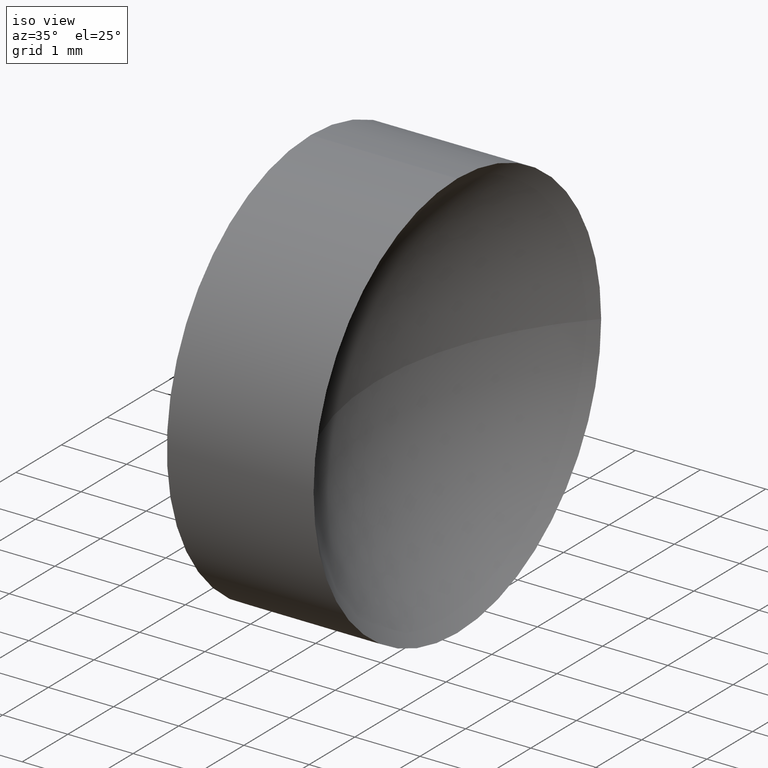
[diagram: clean part render]
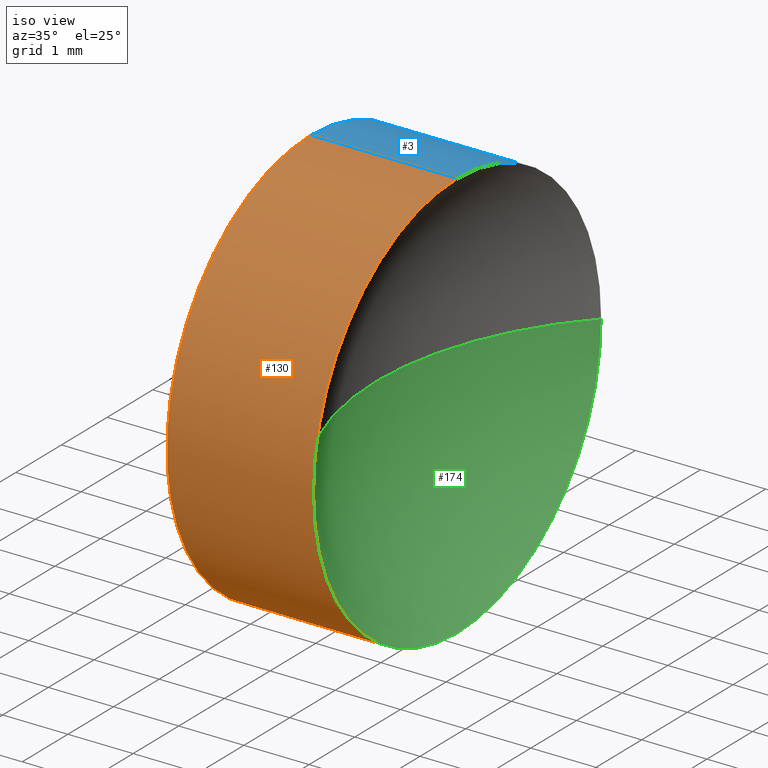
[diagram: same view with three faces highlighted in distinct colors, each labeled with its STEP entity id]
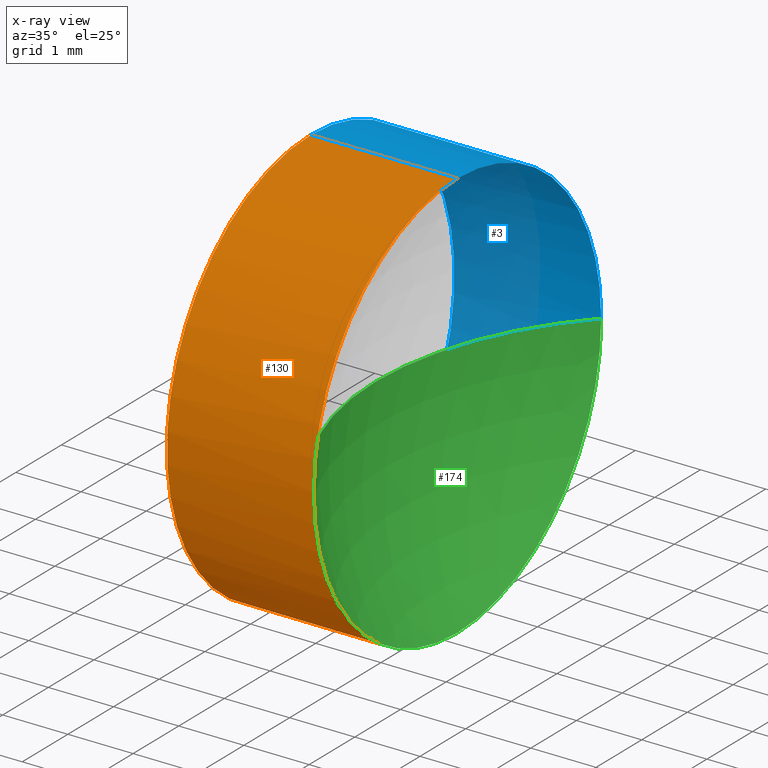
[diagram: x-ray of the same camera — body ghosted, the three highlighted faces saturated]
A machine part, iso view with three faces highlighted in distinct colors.
The next image is the same camera in x-ray (body ghosted, the three faces saturated) — at least one of them is partly hidden behind the body in this view.
Their STEP definitions:

[orange] entity #130 — the highlighted cylindrical surface (partial cylindrical patch) has radius 3.15 mm, axis along (-1, -0, -0).
#5 = FACE_OUTER_BOUND ( 'NONE', #109, .T. ) ;
#11 = DIRECTION ( 'NONE',  ( 0.0000000000000000000, 0.0000000000000000000, 1.000000000000000000 ) ) ;
#19 = LINE ( 'NONE', #47, #172 ) ;
#21 = DIRECTION ( 'NONE',  ( 0.0000000000000000000, 0.0000000000000000000, 1.000000000000000000 ) ) ;
#23 = CARTESIAN_POINT ( 'NONE',  ( 21.15647192244426100, 13.03112609140304000, 3.149999999999998100 ) ) ;
#26 = VERTEX_POINT ( 'NONE', #183 ) ;
#29 = ORIENTED_EDGE ( 'NONE', *, *, #134, .T. ) ;
#35 = CARTESIAN_POINT ( 'NONE',  ( 24.45087548928661300, 13.03112609140304000, -3.149999999999998100 ) ) ;
#36 = DIRECTION ( 'NONE',  ( -1.000000000000000000, -0.0000000000000000000, -0.0000000000000000000 ) ) ;
#37 = CARTESIAN_POINT ( 'NONE',  ( 24.45087548928661300, 13.03112609140304000, 0.0000000000000000000 ) ) ;
#38 = DIRECTION ( 'NONE',  ( -1.000000000000000000, -0.0000000000000000000, -0.0000000000000000000 ) ) ;
#47 = CARTESIAN_POINT ( 'NONE',  ( 21.15647192244426100, 13.03112609140304000, -3.149999999999998100 ) ) ;
#57 = ORIENTED_EDGE ( 'NONE', *, *, #60, .F. ) ;
#60 = EDGE_CURVE ( 'NONE', #131, #91, #65, .T. ) ;
#61 = CIRCLE ( 'NONE', #135, 3.149999999999998100 ) ;
#63 = AXIS2_PLACEMENT_3D ( 'NONE', #113, #36, #143 ) ;
#65 = CIRCLE ( 'NONE', #98, 3.149999999999998100 ) ;
#66 = CARTESIAN_POINT ( 'NONE',  ( 22.20087548928661300, 13.03112609140304000, 0.0000000000000000000 ) ) ;
#69 = CARTESIAN_POINT ( 'NONE',  ( 22.20087548928661300, 13.03112609140304000, 3.149999999999998100 ) ) ;
#71 = EDGE_CURVE ( 'NONE', #164, #131, #19, .T. ) ;
#79 = VERTEX_POINT ( 'NONE', #138 ) ;
#86 = CIRCLE ( 'NONE', #63, 3.149999999999998100 ) ;
#91 = VERTEX_POINT ( 'NONE', #69 ) ;
#93 = VECTOR ( 'NONE', #142, 1000.000000000000000 ) ;
#95 = CARTESIAN_POINT ( 'NONE',  ( 22.20087548928661300, 13.03112609140304000, -3.149999999999998100 ) ) ;
#98 = AXIS2_PLACEMENT_3D ( 'NONE', #66, #122, #11 ) ;
#99 = DIRECTION ( 'NONE',  ( 0.0000000000000000000, 0.0000000000000000000, 1.000000000000000000 ) ) ;
#102 = ORIENTED_EDGE ( 'NONE', *, *, #161, .T. ) ;
#109 = EDGE_LOOP ( 'NONE', ( #160, #181, #102, #29, #57 ) ) ;
#110 = LINE ( 'NONE', #23, #93 ) ;
#113 = CARTESIAN_POINT ( 'NONE',  ( 24.45087548928661300, 13.03112609140304000, 0.0000000000000000000 ) ) ;
#122 = DIRECTION ( 'NONE',  ( -1.000000000000000000, -0.0000000000000000000, -0.0000000000000000000 ) ) ;
#125 = DIRECTION ( 'NONE',  ( -1.000000000000000000, -0.0000000000000000000, -0.0000000000000000000 ) ) ;
#130 = ADVANCED_FACE ( 'NONE', ( #5 ), #133, .T. ) ;
#131 = VERTEX_POINT ( 'NONE', #95 ) ;
#133 = CYLINDRICAL_SURFACE ( 'NONE', #178, 3.149999999999998100 ) ;
#134 = EDGE_CURVE ( 'NONE', #26, #91, #110, .T. ) ;
#135 = AXIS2_PLACEMENT_3D ( 'NONE', #37, #125, #99 ) ;
#138 = CARTESIAN_POINT ( 'NONE',  ( 24.45087548928661300, 9.881126091403041700, 0.0000000000000000000 ) ) ;
#142 = DIRECTION ( 'NONE',  ( -1.000000000000000000, -0.0000000000000000000, -0.0000000000000000000 ) ) ;
#143 = DIRECTION ( 'NONE',  ( 0.0000000000000000000, 0.0000000000000000000, 1.000000000000000000 ) ) ;
#150 = EDGE_CURVE ( 'NONE', #164, #79, #86, .T. ) ;
#160 = ORIENTED_EDGE ( 'NONE', *, *, #71, .F. ) ;
#161 = EDGE_CURVE ( 'NONE', #79, #26, #61, .T. ) ;
#164 = VERTEX_POINT ( 'NONE', #35 ) ;
#165 = DIRECTION ( 'NONE',  ( -1.000000000000000000, -0.0000000000000000000, -0.0000000000000000000 ) ) ;
#172 = VECTOR ( 'NONE', #165, 1000.000000000000000 ) ;
#178 = AXIS2_PLACEMENT_3D ( 'NONE', #184, #38, #21 ) ;
#181 = ORIENTED_EDGE ( 'NONE', *, *, #150, .T. ) ;
#183 = CARTESIAN_POINT ( 'NONE',  ( 24.45087548928661300, 13.03112609140304000, 3.149999999999998100 ) ) ;
#184 = CARTESIAN_POINT ( 'NONE',  ( 21.15647192244426100, 13.03112609140304000, 0.0000000000000000000 ) ) ;

[blue] entity #3 — the highlighted cylindrical surface (partial cylindrical patch) has radius 3.15 mm, axis along (-1, -0, -0).
#2 = DIRECTION ( 'NONE',  ( -1.000000000000000000, -0.0000000000000000000, -0.0000000000000000000 ) ) ;
#3 = ADVANCED_FACE ( 'NONE', ( #144 ), #106, .T. ) ;
#9 = AXIS2_PLACEMENT_3D ( 'NONE', #67, #81, #64 ) ;
#15 = AXIS2_PLACEMENT_3D ( 'NONE', #84, #157, #34 ) ;
#19 = LINE ( 'NONE', #47, #172 ) ;
#20 = AXIS2_PLACEMENT_3D ( 'NONE', #27, #2, #124 ) ;
#23 = CARTESIAN_POINT ( 'NONE',  ( 21.15647192244426100, 13.03112609140304000, 3.149999999999998100 ) ) ;
#25 = CARTESIAN_POINT ( 'NONE',  ( 24.45087548928661300, 16.18112609140303700, 3.857637417314161200E-016 ) ) ;
#26 = VERTEX_POINT ( 'NONE', #183 ) ;
#27 = CARTESIAN_POINT ( 'NONE',  ( 22.20087548928661300, 13.03112609140304000, 0.0000000000000000000 ) ) ;
#34 = DIRECTION ( 'NONE',  ( 0.0000000000000000000, 0.0000000000000000000, 1.000000000000000000 ) ) ;
#35 = CARTESIAN_POINT ( 'NONE',  ( 24.45087548928661300, 13.03112609140304000, -3.149999999999998100 ) ) ;
#42 = CIRCLE ( 'NONE', #20, 3.149999999999998100 ) ;
#47 = CARTESIAN_POINT ( 'NONE',  ( 21.15647192244426100, 13.03112609140304000, -3.149999999999998100 ) ) ;
#62 = ORIENTED_EDGE ( 'NONE', *, *, #88, .T. ) ;
#64 = DIRECTION ( 'NONE',  ( 0.0000000000000000000, 0.0000000000000000000, 1.000000000000000000 ) ) ;
#67 = CARTESIAN_POINT ( 'NONE',  ( 21.15647192244426100, 13.03112609140304000, 0.0000000000000000000 ) ) ;
#69 = CARTESIAN_POINT ( 'NONE',  ( 22.20087548928661300, 13.03112609140304000, 3.149999999999998100 ) ) ;
#70 = CARTESIAN_POINT ( 'NONE',  ( 24.45087548928661300, 13.03112609140304000, 0.0000000000000000000 ) ) ;
#71 = EDGE_CURVE ( 'NONE', #164, #131, #19, .T. ) ;
#81 = DIRECTION ( 'NONE',  ( -1.000000000000000000, -0.0000000000000000000, -0.0000000000000000000 ) ) ;
#84 = CARTESIAN_POINT ( 'NONE',  ( 24.45087548928661300, 13.03112609140304000, 0.0000000000000000000 ) ) ;
#88 = EDGE_CURVE ( 'NONE', #114, #164, #117, .T. ) ;
#91 = VERTEX_POINT ( 'NONE', #69 ) ;
#93 = VECTOR ( 'NONE', #142, 1000.000000000000000 ) ;
#95 = CARTESIAN_POINT ( 'NONE',  ( 22.20087548928661300, 13.03112609140304000, -3.149999999999998100 ) ) ;
#100 = ORIENTED_EDGE ( 'NONE', *, *, #71, .T. ) ;
#106 = CYLINDRICAL_SURFACE ( 'NONE', #9, 3.149999999999998100 ) ;
#107 = AXIS2_PLACEMENT_3D ( 'NONE', #70, #170, #171 ) ;
#110 = LINE ( 'NONE', #23, #93 ) ;
#114 = VERTEX_POINT ( 'NONE', #25 ) ;
#117 = CIRCLE ( 'NONE', #107, 3.149999999999998100 ) ;
#123 = ORIENTED_EDGE ( 'NONE', *, *, #169, .T. ) ;
#124 = DIRECTION ( 'NONE',  ( 0.0000000000000000000, 0.0000000000000000000, 1.000000000000000000 ) ) ;
#129 = CIRCLE ( 'NONE', #15, 3.149999999999998100 ) ;
#131 = VERTEX_POINT ( 'NONE', #95 ) ;
#132 = ORIENTED_EDGE ( 'NONE', *, *, #134, .F. ) ;
#134 = EDGE_CURVE ( 'NONE', #26, #91, #110, .T. ) ;
#136 = EDGE_LOOP ( 'NONE', ( #62, #100, #179, #132, #123 ) ) ;
#142 = DIRECTION ( 'NONE',  ( -1.000000000000000000, -0.0000000000000000000, -0.0000000000000000000 ) ) ;
#144 = FACE_OUTER_BOUND ( 'NONE', #136, .T. ) ;
#157 = DIRECTION ( 'NONE',  ( -1.000000000000000000, -0.0000000000000000000, -0.0000000000000000000 ) ) ;
#164 = VERTEX_POINT ( 'NONE', #35 ) ;
#165 = DIRECTION ( 'NONE',  ( -1.000000000000000000, -0.0000000000000000000, -0.0000000000000000000 ) ) ;
#169 = EDGE_CURVE ( 'NONE', #26, #114, #129, .T. ) ;
#170 = DIRECTION ( 'NONE',  ( -1.000000000000000000, -0.0000000000000000000, -0.0000000000000000000 ) ) ;
#171 = DIRECTION ( 'NONE',  ( 0.0000000000000000000, 0.0000000000000000000, 1.000000000000000000 ) ) ;
#172 = VECTOR ( 'NONE', #165, 1000.000000000000000 ) ;
#179 = ORIENTED_EDGE ( 'NONE', *, *, #180, .F. ) ;
#180 = EDGE_CURVE ( 'NONE', #91, #131, #42, .T. ) ;
#183 = CARTESIAN_POINT ( 'NONE',  ( 24.45087548928661300, 13.03112609140304000, 3.149999999999998100 ) ) ;

[green] entity #174 — the highlighted spherical surface has radius 4.594 mm.
#10 = ORIENTED_EDGE ( 'NONE', *, *, #150, .F. ) ;
#16 = ORIENTED_EDGE ( 'NONE', *, *, #80, .F. ) ;
#17 = EDGE_LOOP ( 'NONE', ( #41, #94, #16, #10 ) ) ;
#22 = CIRCLE ( 'NONE', #154, 4.593999999999995900 ) ;
#25 = CARTESIAN_POINT ( 'NONE',  ( 24.45087548928661300, 16.18112609140303700, 3.857637417314161200E-016 ) ) ;
#32 = DIRECTION ( 'NONE',  ( 0.0000000000000000000, -1.224646799147353200E-016, 1.000000000000000000 ) ) ;
#35 = CARTESIAN_POINT ( 'NONE',  ( 24.45087548928661300, 13.03112609140304000, -3.149999999999998100 ) ) ;
#36 = DIRECTION ( 'NONE',  ( -1.000000000000000000, -0.0000000000000000000, -0.0000000000000000000 ) ) ;
#41 = ORIENTED_EDGE ( 'NONE', *, *, #88, .F. ) ;
#43 = AXIS2_PLACEMENT_3D ( 'NONE', #87, #97, #115 ) ;
#45 = VERTEX_POINT ( 'NONE', #108 ) ;
#48 = EDGE_CURVE ( 'NONE', #114, #45, #22, .T. ) ;
#49 = DIRECTION ( 'NONE',  ( 0.0000000000000000000, -1.000000000000000000, -1.224646799147353500E-016 ) ) ;
#52 = CARTESIAN_POINT ( 'NONE',  ( 27.79487548928660700, 13.03112609140304000, 0.0000000000000000000 ) ) ;
#63 = AXIS2_PLACEMENT_3D ( 'NONE', #113, #36, #143 ) ;
#70 = CARTESIAN_POINT ( 'NONE',  ( 24.45087548928661300, 13.03112609140304000, 0.0000000000000000000 ) ) ;
#79 = VERTEX_POINT ( 'NONE', #138 ) ;
#80 = EDGE_CURVE ( 'NONE', #79, #45, #156, .T. ) ;
#86 = CIRCLE ( 'NONE', #63, 3.149999999999998100 ) ;
#87 = CARTESIAN_POINT ( 'NONE',  ( 27.79487548928660700, 13.03112609140304000, 0.0000000000000000000 ) ) ;
#88 = EDGE_CURVE ( 'NONE', #114, #164, #117, .T. ) ;
#94 = ORIENTED_EDGE ( 'NONE', *, *, #48, .T. ) ;
#97 = DIRECTION ( 'NONE',  ( 0.0000000000000000000, 0.0000000000000000000, -1.000000000000000000 ) ) ;
#107 = AXIS2_PLACEMENT_3D ( 'NONE', #70, #170, #171 ) ;
#108 = CARTESIAN_POINT ( 'NONE',  ( 23.20087548928660900, 13.03112609140304000, 0.0000000000000000000 ) ) ;
#113 = CARTESIAN_POINT ( 'NONE',  ( 24.45087548928661300, 13.03112609140304000, 0.0000000000000000000 ) ) ;
#114 = VERTEX_POINT ( 'NONE', #25 ) ;
#115 = DIRECTION ( 'NONE',  ( -1.000000000000000000, 0.0000000000000000000, 0.0000000000000000000 ) ) ;
#117 = CIRCLE ( 'NONE', #107, 3.149999999999998100 ) ;
#120 = SPHERICAL_SURFACE ( 'NONE', #140, 4.593999999999996800 ) ;
#121 = CARTESIAN_POINT ( 'NONE',  ( 27.79487548928660700, 13.03112609140304000, 0.0000000000000000000 ) ) ;
#127 = DIRECTION ( 'NONE',  ( 0.0000000000000000000, 0.0000000000000000000, 1.000000000000000000 ) ) ;
#138 = CARTESIAN_POINT ( 'NONE',  ( 24.45087548928661300, 9.881126091403041700, 0.0000000000000000000 ) ) ;
#140 = AXIS2_PLACEMENT_3D ( 'NONE', #52, #127, #155 ) ;
#141 = FACE_OUTER_BOUND ( 'NONE', #17, .T. ) ;
#143 = DIRECTION ( 'NONE',  ( 0.0000000000000000000, 0.0000000000000000000, 1.000000000000000000 ) ) ;
#150 = EDGE_CURVE ( 'NONE', #164, #79, #86, .T. ) ;
#154 = AXIS2_PLACEMENT_3D ( 'NONE', #121, #32, #49 ) ;
#155 = DIRECTION ( 'NONE',  ( 0.0000000000000000000, -1.000000000000000000, 0.0000000000000000000 ) ) ;
#156 = CIRCLE ( 'NONE', #43, 4.593999999999997600 ) ;
#164 = VERTEX_POINT ( 'NONE', #35 ) ;
#170 = DIRECTION ( 'NONE',  ( -1.000000000000000000, -0.0000000000000000000, -0.0000000000000000000 ) ) ;
#171 = DIRECTION ( 'NONE',  ( 0.0000000000000000000, 0.0000000000000000000, 1.000000000000000000 ) ) ;
#174 = ADVANCED_FACE ( 'NONE', ( #141 ), #120, .F. ) ;